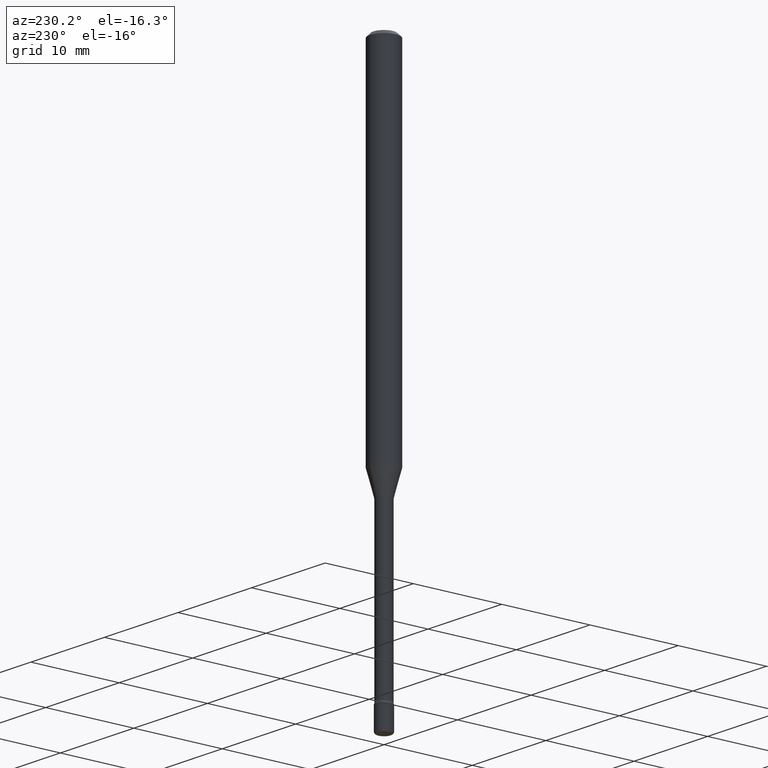
[diagram: clean part render]
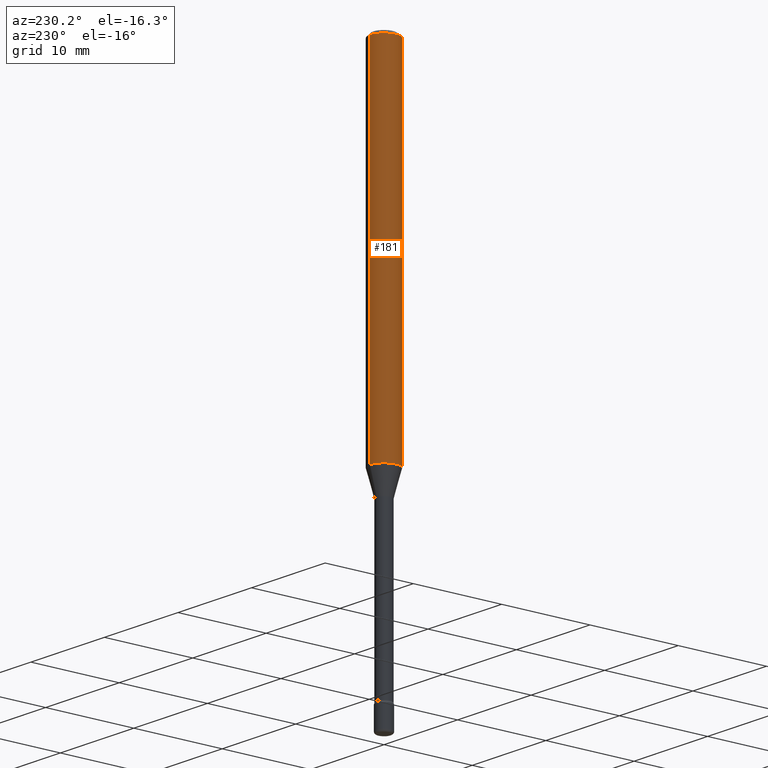
[diagram: same view with one face highlighted and labeled with its STEP entity id]
A machine part, auxiliary view. The second image highlights one B-rep face of the part: STEP entity #181.
In plain terms, the highlighted cylindrical surface (edge-blend (fillet) strip) has radius 1.5875 mm, axis along (-0, 0, 1).
Its self-contained STEP definition (entity closure, byte-faithful):
#7 = VERTEX_POINT ( 'NONE', #151 ) ;
#17 = DIRECTION ( 'NONE',  ( -2.445417640947345847E-29, 3.491554610375806299E-15, 1.000000000000000000 ) ) ;
#42 = DIRECTION ( 'NONE',  ( -2.445417640947345847E-29, 3.491554610375806299E-15, 1.000000000000000000 ) ) ;
#44 = DIRECTION ( 'NONE',  ( -6.982962677686265922E-15, -1.000000000000000000, 3.483106191921935554E-15 ) ) ;
#54 = DIRECTION ( 'NONE',  ( -2.445417640947345847E-29, 3.491554610375806299E-15, 1.000000000000000000 ) ) ;
#65 = VECTOR ( 'NONE', #17, 39.37007874015748143 ) ;
#76 = AXIS2_PLACEMENT_3D ( 'NONE', #443, #94, #434 ) ;
#94 = DIRECTION ( 'NONE',  ( -2.445417640947345847E-29, 3.491554610375806299E-15, 1.000000000000000000 ) ) ;
#111 = AXIS2_PLACEMENT_3D ( 'NONE', #249, #54, #44 ) ;
#113 = ORIENTED_EDGE ( 'NONE', *, *, #554, .F. ) ;
#120 = CIRCLE ( 'NONE', #111, 0.06250000000000000000 ) ;
#151 = CARTESIAN_POINT ( 'NONE',  ( -4.364351673553540013E-16, -0.06250000000000544009, -1.549531296095961297 ) ) ;
#168 = CYLINDRICAL_SURFACE ( 'NONE', #383, 0.06250000000000000000 ) ;
#169 = CARTESIAN_POINT ( 'NONE',  ( 4.440892098501002843E-16, 0.06249999999999455991, -1.549531296095961963 ) ) ;
#176 = EDGE_CURVE ( 'NONE', #7, #541, #253, .T. ) ;
#181 = ADVANCED_FACE ( 'NONE', ( #464 ), #168, .T. ) ;
#182 = ORIENTED_EDGE ( 'NONE', *, *, #385, .T. ) ;
#188 = CARTESIAN_POINT ( 'NONE',  ( 4.440892098501006787E-16, 0.06249999999999995143, -0.01500000000000024578 ) ) ;
#218 = VERTEX_POINT ( 'NONE', #169 ) ;
#241 = EDGE_LOOP ( 'NONE', ( #113, #182, #395, #444 ) ) ;
#249 = CARTESIAN_POINT ( 'NONE',  ( 3.668126461421025373E-31, -5.237331915563719680E-17, -0.01500000000000002720 ) ) ;
#251 = DIRECTION ( 'NONE',  ( -6.982962677686265922E-15, -1.000000000000000000, 3.491554610375805905E-15 ) ) ;
#253 = LINE ( 'NONE', #523, #486 ) ;
#265 = EDGE_CURVE ( 'NONE', #539, #541, #120, .T. ) ;
#338 = DIRECTION ( 'NONE',  ( -2.445417640947345847E-29, 3.491554610375806299E-15, 1.000000000000000000 ) ) ;
#346 = CIRCLE ( 'NONE', #76, 0.06250000000000000000 ) ;
#356 = CARTESIAN_POINT ( 'NONE',  ( -4.364351673553912750E-16, -0.06250000000000005551, -0.01499999999999981036 ) ) ;
#383 = AXIS2_PLACEMENT_3D ( 'NONE', #386, #338, #251 ) ;
#385 = EDGE_CURVE ( 'NONE', #218, #7, #346, .T. ) ;
#386 = CARTESIAN_POINT ( 'NONE',  ( -1.169113584055446105E-44, 1.669184350826100908E-30, 4.780733988912460139E-16 ) ) ;
#395 = ORIENTED_EDGE ( 'NONE', *, *, #176, .T. ) ;
#412 = CARTESIAN_POINT ( 'NONE',  ( 4.440892098500625669E-16, 0.06250000000000000000, 2.598512357427581449E-16 ) ) ;
#434 = DIRECTION ( 'NONE',  ( -6.982962677686265922E-15, -1.000000000000000000, 4.370956789862821150E-15 ) ) ;
#443 = CARTESIAN_POINT ( 'NONE',  ( 3.789251166673069314E-29, -5.410273140805453489E-15, -1.549531296095961519 ) ) ;
#444 = ORIENTED_EDGE ( 'NONE', *, *, #265, .F. ) ;
#449 = LINE ( 'NONE', #412, #65 ) ;
#464 = FACE_OUTER_BOUND ( 'NONE', #241, .T. ) ;
#486 = VECTOR ( 'NONE', #42, 39.37007874015748143 ) ;
#523 = CARTESIAN_POINT ( 'NONE',  ( -4.364351673553916201E-16, -0.06250000000000000000, 6.962955620397339816E-16 ) ) ;
#539 = VERTEX_POINT ( 'NONE', #188 ) ;
#541 = VERTEX_POINT ( 'NONE', #356 ) ;
#554 = EDGE_CURVE ( 'NONE', #218, #539, #449, .T. ) ;